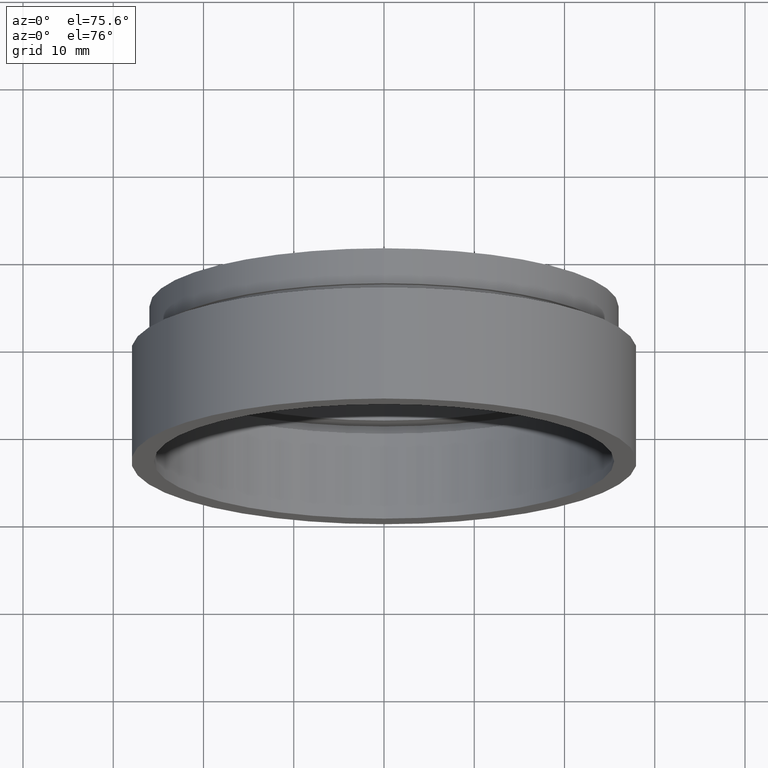
[diagram: clean part render]
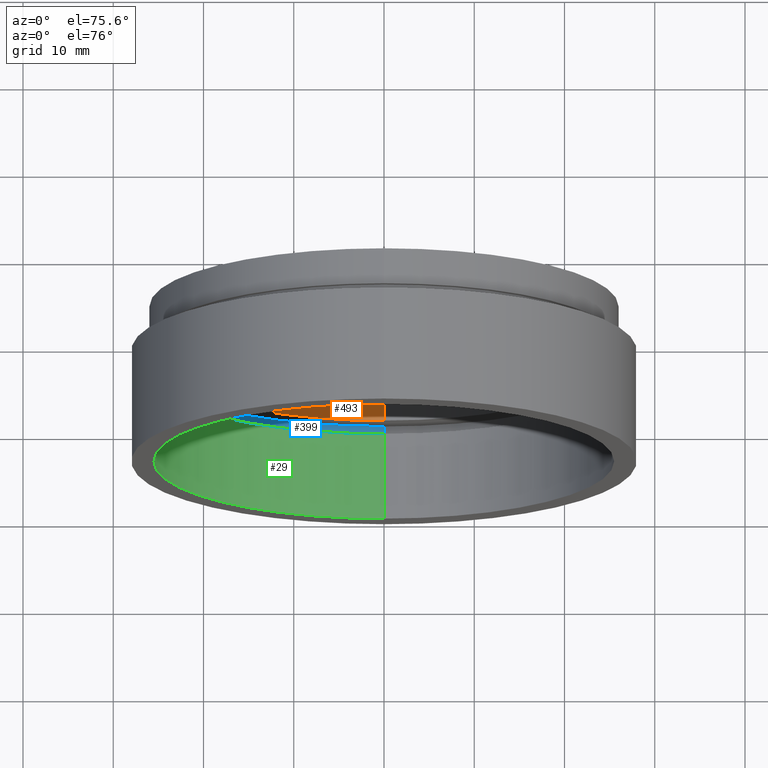
[diagram: same view with three faces highlighted in distinct colors, each labeled with its STEP entity id]
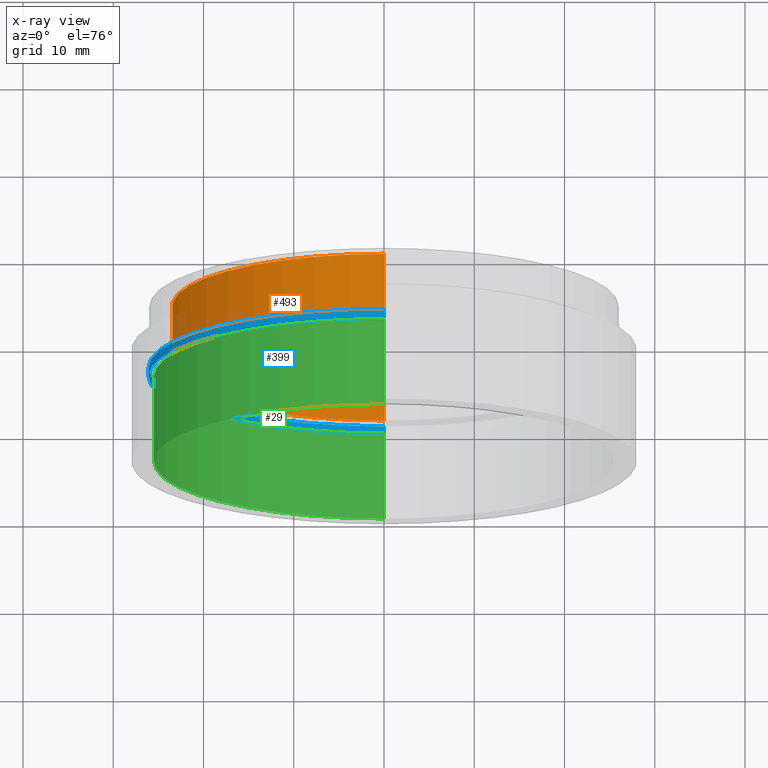
[diagram: x-ray of the same camera — body ghosted, the three highlighted faces saturated]
A machine part, auxiliary view with three faces highlighted in distinct colors.
The next image is the same camera in x-ray (body ghosted, the three faces saturated) — at least one of them is partly hidden behind the body in this view.
Their STEP definitions:

[orange] entity #493 — the highlighted cylindrical surface (partial cylindrical patch) has radius 23.5 mm, axis along (-0, 1, -0).
#1 = DIRECTION ( 'NONE',  ( -0.0000000000000000000, 1.000000000000000000, -0.0000000000000000000 ) ) ;
#36 = DIRECTION ( 'NONE',  ( 0.0000000000000000000, 0.0000000000000000000, 1.000000000000000000 ) ) ;
#39 = ORIENTED_EDGE ( 'NONE', *, *, #221, .T. ) ;
#60 = CARTESIAN_POINT ( 'NONE',  ( 2.877919977996282300E-015, 161.3761669434274500, -23.50000000000001800 ) ) ;
#64 = ORIENTED_EDGE ( 'NONE', *, *, #160, .F. ) ;
#70 = VERTEX_POINT ( 'NONE', #359 ) ;
#74 = VECTOR ( 'NONE', #211, 1000.000000000000000 ) ;
#80 = VERTEX_POINT ( 'NONE', #592 ) ;
#81 = DIRECTION ( 'NONE',  ( -0.0000000000000000000, 1.000000000000000000, -0.0000000000000000000 ) ) ;
#90 = VERTEX_POINT ( 'NONE', #218 ) ;
#94 = CARTESIAN_POINT ( 'NONE',  ( 0.0000000000000000000, 10.69999999999998700, 0.0000000000000000000 ) ) ;
#103 = ORIENTED_EDGE ( 'NONE', *, *, #122, .T. ) ;
#111 = LINE ( 'NONE', #607, #74 ) ;
#114 = ORIENTED_EDGE ( 'NONE', *, *, #368, .F. ) ;
#122 = EDGE_CURVE ( 'NONE', #542, #90, #123, .T. ) ;
#123 = LINE ( 'NONE', #60, #260 ) ;
#131 = DIRECTION ( 'NONE',  ( -0.0000000000000000000, 1.000000000000000000, -0.0000000000000000000 ) ) ;
#160 = EDGE_CURVE ( 'NONE', #80, #70, #111, .T. ) ;
#177 = CARTESIAN_POINT ( 'NONE',  ( 0.0000000000000000000, 17.69999999999999200, 0.0000000000000000000 ) ) ;
#182 = CIRCLE ( 'NONE', #250, 23.50000000000001800 ) ;
#211 = DIRECTION ( 'NONE',  ( -0.0000000000000000000, 1.000000000000000000, -0.0000000000000000000 ) ) ;
#218 = CARTESIAN_POINT ( 'NONE',  ( 2.877919977996282300E-015, 17.69999999999999200, -23.50000000000001800 ) ) ;
#221 = EDGE_CURVE ( 'NONE', #90, #70, #536, .T. ) ;
#250 = AXIS2_PLACEMENT_3D ( 'NONE', #94, #1, #335 ) ;
#252 = AXIS2_PLACEMENT_3D ( 'NONE', #279, #131, #615 ) ;
#260 = VECTOR ( 'NONE', #298, 1000.000000000000000 ) ;
#279 = CARTESIAN_POINT ( 'NONE',  ( 0.0000000000000000000, 161.3761669434274500, 0.0000000000000000000 ) ) ;
#298 = DIRECTION ( 'NONE',  ( -0.0000000000000000000, 1.000000000000000000, -0.0000000000000000000 ) ) ;
#335 = DIRECTION ( 'NONE',  ( 0.0000000000000000000, 0.0000000000000000000, 1.000000000000000000 ) ) ;
#343 = CARTESIAN_POINT ( 'NONE',  ( 2.877919977996282300E-015, 10.69999999999998700, -23.50000000000001800 ) ) ;
#349 = FACE_OUTER_BOUND ( 'NONE', #462, .T. ) ;
#356 = CYLINDRICAL_SURFACE ( 'NONE', #252, 23.50000000000001800 ) ;
#359 = CARTESIAN_POINT ( 'NONE',  ( 0.0000000000000000000, 17.69999999999999200, 23.50000000000001800 ) ) ;
#368 = EDGE_CURVE ( 'NONE', #542, #80, #182, .T. ) ;
#435 = AXIS2_PLACEMENT_3D ( 'NONE', #177, #81, #36 ) ;
#462 = EDGE_LOOP ( 'NONE', ( #114, #103, #39, #64 ) ) ;
#493 = ADVANCED_FACE ( 'NONE', ( #349 ), #356, .F. ) ;
#536 = CIRCLE ( 'NONE', #435, 23.50000000000001800 ) ;
#542 = VERTEX_POINT ( 'NONE', #343 ) ;
#592 = CARTESIAN_POINT ( 'NONE',  ( 0.0000000000000000000, 10.69999999999998700, 23.50000000000001800 ) ) ;
#607 = CARTESIAN_POINT ( 'NONE',  ( 0.0000000000000000000, 161.3761669434274500, 23.50000000000001800 ) ) ;
#615 = DIRECTION ( 'NONE',  ( 0.0000000000000000000, 0.0000000000000000000, 1.000000000000000000 ) ) ;

[blue] entity #399 — the highlighted cylindrical surface (partial cylindrical patch) has radius 26.1 mm, axis along (-0, 1, -0).
#6 = EDGE_CURVE ( 'NONE', #441, #82, #513, .T. ) ;
#82 = VERTEX_POINT ( 'NONE', #494 ) ;
#99 = FACE_OUTER_BOUND ( 'NONE', #347, .T. ) ;
#108 = CIRCLE ( 'NONE', #170, 26.10000000000002300 ) ;
#112 = VECTOR ( 'NONE', #481, 1000.000000000000000 ) ;
#140 = CARTESIAN_POINT ( 'NONE',  ( 0.0000000000000000000, 161.3761669434274500, 0.0000000000000000000 ) ) ;
#168 = CARTESIAN_POINT ( 'NONE',  ( 0.0000000000000000000, 10.69999999999998700, 0.0000000000000000000 ) ) ;
#170 = AXIS2_PLACEMENT_3D ( 'NONE', #410, #460, #234 ) ;
#183 = EDGE_CURVE ( 'NONE', #82, #409, #565, .T. ) ;
#203 = VECTOR ( 'NONE', #463, 1000.000000000000000 ) ;
#234 = DIRECTION ( 'NONE',  ( 0.0000000000000000000, 0.0000000000000000000, 1.000000000000000000 ) ) ;
#246 = AXIS2_PLACEMENT_3D ( 'NONE', #140, #623, #574 ) ;
#254 = CYLINDRICAL_SURFACE ( 'NONE', #246, 26.10000000000001900 ) ;
#255 = AXIS2_PLACEMENT_3D ( 'NONE', #168, #365, #510 ) ;
#302 = ORIENTED_EDGE ( 'NONE', *, *, #6, .T. ) ;
#325 = CARTESIAN_POINT ( 'NONE',  ( 0.0000000000000000000, 9.699999999999986900, 26.10000000000002300 ) ) ;
#342 = ORIENTED_EDGE ( 'NONE', *, *, #454, .F. ) ;
#347 = EDGE_LOOP ( 'NONE', ( #342, #302, #558, #369 ) ) ;
#350 = CARTESIAN_POINT ( 'NONE',  ( 3.196328145774594300E-015, 161.3761669434274500, -26.10000000000001900 ) ) ;
#365 = DIRECTION ( 'NONE',  ( -0.0000000000000000000, 1.000000000000000000, -0.0000000000000000000 ) ) ;
#369 = ORIENTED_EDGE ( 'NONE', *, *, #471, .F. ) ;
#399 = ADVANCED_FACE ( 'NONE', ( #99 ), #254, .F. ) ;
#409 = VERTEX_POINT ( 'NONE', #478 ) ;
#410 = CARTESIAN_POINT ( 'NONE',  ( 0.0000000000000000000, 9.699999999999986900, 0.0000000000000000000 ) ) ;
#419 = CARTESIAN_POINT ( 'NONE',  ( 3.196328145774595100E-015, 9.699999999999986900, -26.10000000000002600 ) ) ;
#431 = VERTEX_POINT ( 'NONE', #325 ) ;
#441 = VERTEX_POINT ( 'NONE', #419 ) ;
#454 = EDGE_CURVE ( 'NONE', #441, #431, #108, .T. ) ;
#460 = DIRECTION ( 'NONE',  ( -0.0000000000000000000, 1.000000000000000000, -0.0000000000000000000 ) ) ;
#463 = DIRECTION ( 'NONE',  ( -0.0000000000000000000, 1.000000000000000000, -0.0000000000000000000 ) ) ;
#464 = LINE ( 'NONE', #522, #203 ) ;
#471 = EDGE_CURVE ( 'NONE', #431, #409, #464, .T. ) ;
#478 = CARTESIAN_POINT ( 'NONE',  ( 0.0000000000000000000, 10.69999999999998700, 26.10000000000001900 ) ) ;
#481 = DIRECTION ( 'NONE',  ( -0.0000000000000000000, 1.000000000000000000, -0.0000000000000000000 ) ) ;
#494 = CARTESIAN_POINT ( 'NONE',  ( 3.196328145774594300E-015, 10.69999999999998700, -26.10000000000001900 ) ) ;
#510 = DIRECTION ( 'NONE',  ( 0.0000000000000000000, 0.0000000000000000000, 1.000000000000000000 ) ) ;
#513 = LINE ( 'NONE', #350, #112 ) ;
#522 = CARTESIAN_POINT ( 'NONE',  ( 0.0000000000000000000, 161.3761669434274500, 26.10000000000001900 ) ) ;
#558 = ORIENTED_EDGE ( 'NONE', *, *, #183, .T. ) ;
#565 = CIRCLE ( 'NONE', #255, 26.10000000000001900 ) ;
#574 = DIRECTION ( 'NONE',  ( 0.0000000000000000000, 0.0000000000000000000, 1.000000000000000000 ) ) ;
#623 = DIRECTION ( 'NONE',  ( -0.0000000000000000000, 1.000000000000000000, -0.0000000000000000000 ) ) ;

[green] entity #29 — the highlighted cylindrical surface (partial cylindrical patch) has radius 25.5 mm, axis along (-0, 1, -0).
#3 = EDGE_LOOP ( 'NONE', ( #9, #328, #159, #293 ) ) ;
#9 = ORIENTED_EDGE ( 'NONE', *, *, #363, .F. ) ;
#26 = VECTOR ( 'NONE', #475, 1000.000000000000000 ) ;
#29 = ADVANCED_FACE ( 'NONE', ( #124 ), #496, .F. ) ;
#38 = CARTESIAN_POINT ( 'NONE',  ( 3.122849337825753000E-015, 9.699999999999986900, -25.50000000000001800 ) ) ;
#71 = CARTESIAN_POINT ( 'NONE',  ( 3.122849337825753000E-015, -2.775557561562891400E-014, -25.50000000000001800 ) ) ;
#84 = VECTOR ( 'NONE', #286, 1000.000000000000000 ) ;
#85 = CARTESIAN_POINT ( 'NONE',  ( 0.0000000000000000000, 9.699999999999986900, 25.50000000000001800 ) ) ;
#124 = FACE_OUTER_BOUND ( 'NONE', #3, .T. ) ;
#128 = VERTEX_POINT ( 'NONE', #71 ) ;
#134 = EDGE_CURVE ( 'NONE', #251, #420, #502, .T. ) ;
#143 = CARTESIAN_POINT ( 'NONE',  ( 3.122849337825753000E-015, 161.3761669434274500, -25.50000000000001800 ) ) ;
#154 = LINE ( 'NONE', #283, #26 ) ;
#159 = ORIENTED_EDGE ( 'NONE', *, *, #134, .T. ) ;
#191 = CIRCLE ( 'NONE', #545, 25.50000000000001800 ) ;
#251 = VERTEX_POINT ( 'NONE', #38 ) ;
#275 = CARTESIAN_POINT ( 'NONE',  ( 0.0000000000000000000, -2.775557561562891400E-014, 25.50000000000001800 ) ) ;
#282 = AXIS2_PLACEMENT_3D ( 'NONE', #397, #507, #316 ) ;
#283 = CARTESIAN_POINT ( 'NONE',  ( 0.0000000000000000000, 161.3761669434274500, 25.50000000000001800 ) ) ;
#286 = DIRECTION ( 'NONE',  ( -0.0000000000000000000, 1.000000000000000000, -0.0000000000000000000 ) ) ;
#291 = DIRECTION ( 'NONE',  ( -0.0000000000000000000, 1.000000000000000000, -0.0000000000000000000 ) ) ;
#293 = ORIENTED_EDGE ( 'NONE', *, *, #387, .F. ) ;
#294 = DIRECTION ( 'NONE',  ( 0.0000000000000000000, 0.0000000000000000000, 1.000000000000000000 ) ) ;
#316 = DIRECTION ( 'NONE',  ( 0.0000000000000000000, 0.0000000000000000000, 1.000000000000000000 ) ) ;
#319 = LINE ( 'NONE', #143, #84 ) ;
#328 = ORIENTED_EDGE ( 'NONE', *, *, #352, .T. ) ;
#333 = DIRECTION ( 'NONE',  ( 0.0000000000000000000, 0.0000000000000000000, 1.000000000000000000 ) ) ;
#352 = EDGE_CURVE ( 'NONE', #128, #251, #319, .T. ) ;
#363 = EDGE_CURVE ( 'NONE', #128, #531, #191, .T. ) ;
#387 = EDGE_CURVE ( 'NONE', #531, #420, #154, .T. ) ;
#397 = CARTESIAN_POINT ( 'NONE',  ( 0.0000000000000000000, 9.699999999999986900, 0.0000000000000000000 ) ) ;
#420 = VERTEX_POINT ( 'NONE', #85 ) ;
#421 = DIRECTION ( 'NONE',  ( -0.0000000000000000000, 1.000000000000000000, -0.0000000000000000000 ) ) ;
#475 = DIRECTION ( 'NONE',  ( -0.0000000000000000000, 1.000000000000000000, -0.0000000000000000000 ) ) ;
#477 = AXIS2_PLACEMENT_3D ( 'NONE', #581, #291, #294 ) ;
#496 = CYLINDRICAL_SURFACE ( 'NONE', #477, 25.50000000000001800 ) ;
#502 = CIRCLE ( 'NONE', #282, 25.50000000000001800 ) ;
#507 = DIRECTION ( 'NONE',  ( -0.0000000000000000000, 1.000000000000000000, -0.0000000000000000000 ) ) ;
#527 = CARTESIAN_POINT ( 'NONE',  ( 0.0000000000000000000, -2.775557561562891400E-014, 0.0000000000000000000 ) ) ;
#531 = VERTEX_POINT ( 'NONE', #275 ) ;
#545 = AXIS2_PLACEMENT_3D ( 'NONE', #527, #421, #333 ) ;
#581 = CARTESIAN_POINT ( 'NONE',  ( 0.0000000000000000000, 161.3761669434274500, 0.0000000000000000000 ) ) ;